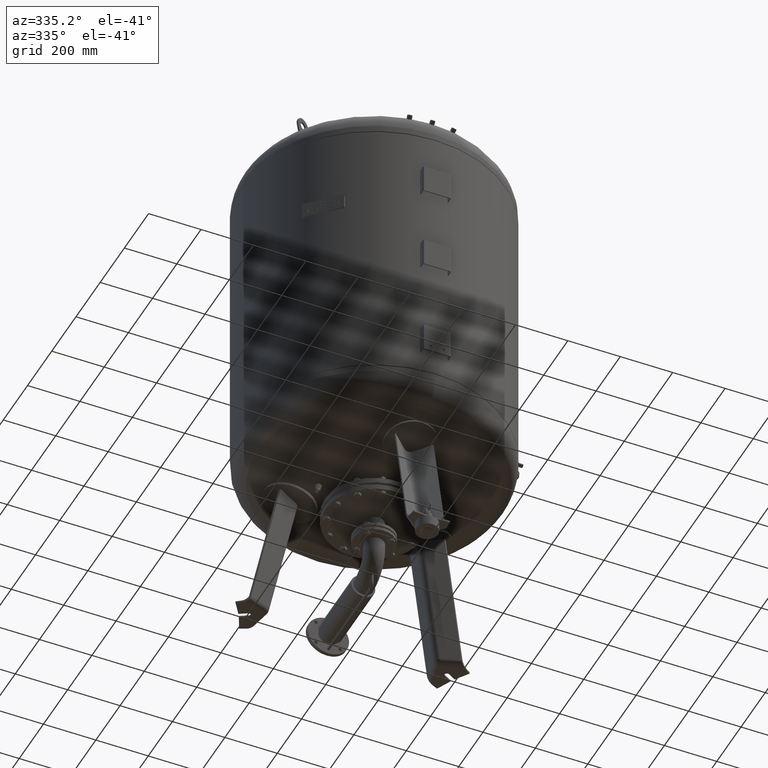
[diagram: clean part render]
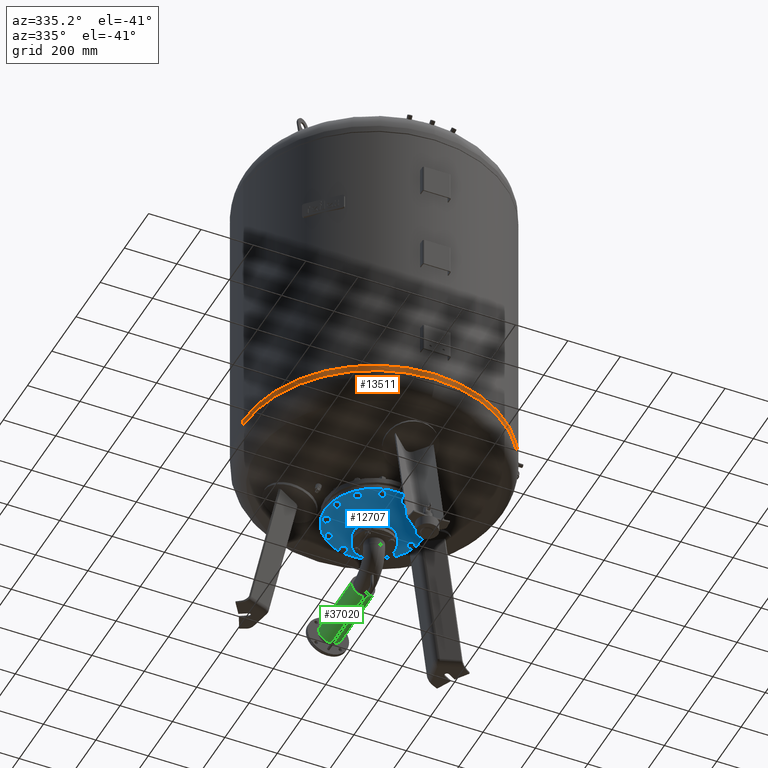
[diagram: same view with three faces highlighted in distinct colors, each labeled with its STEP entity id]
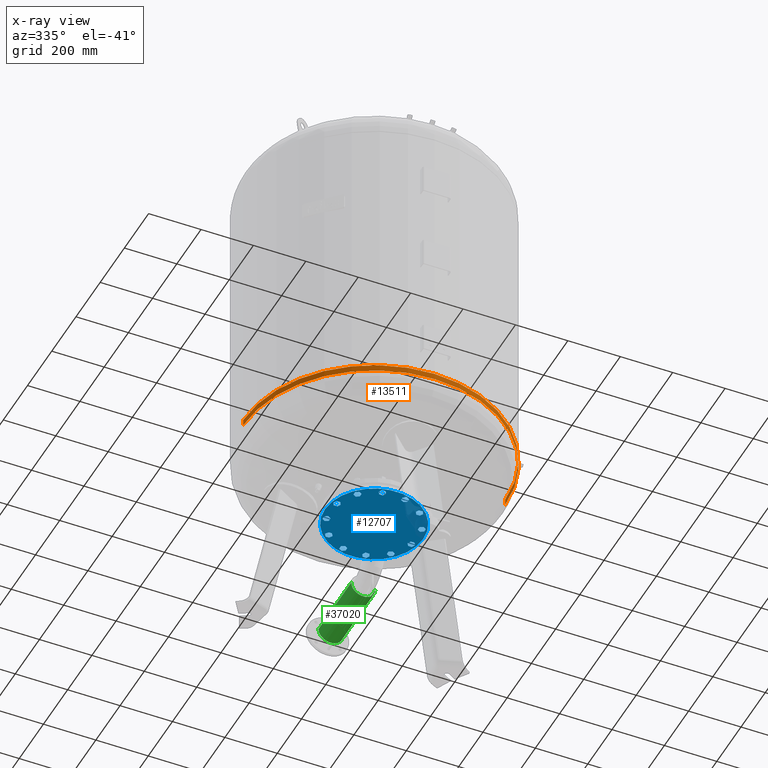
[diagram: x-ray of the same camera — body ghosted, the three highlighted faces saturated]
A machine part, auxiliary view with three faces highlighted in distinct colors.
The next image is the same camera in x-ray (body ghosted, the three faces saturated) — at least one of them is partly hidden behind the body in this view.
Their STEP definitions:

[orange] entity #13511 — the highlighted cylindrical surface (partial cylindrical patch) has radius 500 mm, axis along (-0, -0, 1).
#13319=CARTESIAN_POINT('',(-500.0,-3.995410E-014,677.500000000000000));
#13320=VERTEX_POINT('',#13319);
#13321=CARTESIAN_POINT('',(-500.0,-3.553717E-014,653.455355072719390));
#13322=VERTEX_POINT('',#13321);
#13323=CARTESIAN_POINT('',(-500.0,-3.995410E-014,677.500000000000000));
#13324=DIRECTION('',(0.0,0.0,-1.0));
#13325=VECTOR('',#13324,24.044644927280615);
#13326=LINE('',#13323,#13325);
#13327=EDGE_CURVE('',#13320,#13322,#13326,.T.);
#13329=CARTESIAN_POINT('',(500.0,2.127622E-014,677.500000000000110));
#13330=VERTEX_POINT('',#13329);
#13338=CARTESIAN_POINT('',(500.0,2.569315E-014,653.455355072719500));
#13339=VERTEX_POINT('',#13338);
#13340=CARTESIAN_POINT('',(500.0,2.127622E-014,677.500000000000110));
#13341=DIRECTION('',(0.0,0.0,-1.0));
#13342=VECTOR('',#13341,24.044644927280615);
#13343=LINE('',#13340,#13342);
#13344=EDGE_CURVE('',#13330,#13339,#13343,.T.);
#13370=CARTESIAN_POINT('',(3.381269E-030,-500.000000000000060,653.455355072719390));
#13371=VERTEX_POINT('',#13370);
#13381=CARTESIAN_POINT('',(-2.595210E-014,-3.553717E-014,653.455355072719500));
#13382=DIRECTION('',(0.0,0.0,1.0));
#13383=DIRECTION('',(-1.0,0.0,0.0));
#13384=AXIS2_PLACEMENT_3D('',#13381,#13382,#13383);
#13385=CIRCLE('',#13384,500.0);
#13386=EDGE_CURVE('',#13322,#13371,#13385,.T.);
#13483=CARTESIAN_POINT('',(-2.595210E-014,-3.553717E-014,653.455355072719500));
#13484=DIRECTION('',(0.0,0.0,1.0));
#13485=DIRECTION('',(-1.0,0.0,0.0));
#13486=AXIS2_PLACEMENT_3D('',#13483,#13484,#13485);
#13487=CIRCLE('',#13486,500.0);
#13488=EDGE_CURVE('',#13371,#13339,#13487,.T.);
#13493=CARTESIAN_POINT('',(-2.756489E-014,-3.774564E-014,665.477677536359810));
#13494=DIRECTION('',(-1.341503E-016,-1.836970E-016,1.0));
#13495=DIRECTION('',(-1.0,0.0,0.0));
#13496=AXIS2_PLACEMENT_3D('',#13493,#13494,#13495);
#13497=CYLINDRICAL_SURFACE('',#13496,500.0);
#13498=ORIENTED_EDGE('',*,*,#13327,.T.);
#13499=ORIENTED_EDGE('',*,*,#13386,.T.);
#13500=ORIENTED_EDGE('',*,*,#13488,.T.);
#13501=ORIENTED_EDGE('',*,*,#13344,.F.);
#13502=CARTESIAN_POINT('',(-2.917769E-014,-3.995410E-014,677.500000000000000));
#13503=DIRECTION('',(0.0,0.0,1.0));
#13504=DIRECTION('',(-1.0,0.0,0.0));
#13505=AXIS2_PLACEMENT_3D('',#13502,#13503,#13504);
#13506=CIRCLE('',#13505,500.0);
#13507=EDGE_CURVE('',#13320,#13330,#13506,.T.);
#13508=ORIENTED_EDGE('',*,*,#13507,.F.);
#13509=EDGE_LOOP('',(#13498,#13499,#13500,#13501,#13508));
#13510=FACE_OUTER_BOUND('',#13509,.T.);
#13511=ADVANCED_FACE('',(#13510),#13497,.T.);

[blue] entity #12707 — the highlighted planar face has unit normal (0, 0, -1).
#4851=CARTESIAN_POINT('',(-38.050000000000018,-4.163799E-015,383.0));
#4852=VERTEX_POINT('',#4851);
#4868=CARTESIAN_POINT('',(38.049999999999983,-8.823426E-015,383.0));
#4869=VERTEX_POINT('',#4868);
#4876=CARTESIAN_POINT('',(-8.604691E-015,-4.163799E-015,383.0));
#4877=DIRECTION('',(0.0,0.0,-1.0));
#4878=DIRECTION('',(-1.0,0.0,0.0));
#4879=AXIS2_PLACEMENT_3D('',#4876,#4877,#4878);
#4880=CIRCLE('',#4879,38.050000000000004);
#4881=EDGE_CURVE('',#4869,#4852,#4880,.T.);
#4891=CARTESIAN_POINT('',(-187.500000000000000,-4.163799E-015,383.000000000000110));
#4892=VERTEX_POINT('',#4891);
#4901=CARTESIAN_POINT('',(187.500000000000000,-2.712517E-014,383.000000000000110));
#4902=VERTEX_POINT('',#4901);
#4903=CARTESIAN_POINT('',(-8.604691E-015,-4.163799E-015,383.000000000000110));
#4904=DIRECTION('',(0.0,0.0,-1.0));
#4905=DIRECTION('',(-1.0,0.0,0.0));
#4906=AXIS2_PLACEMENT_3D('',#4903,#4904,#4905);
#4907=CIRCLE('',#4906,187.500000000000000);
#4908=EDGE_CURVE('',#4902,#4892,#4907,.T.);
#6881=CARTESIAN_POINT('',(43.352190054672320,-175.648982363969960,383.0));
#6882=VERTEX_POINT('',#6881);
#6883=CARTESIAN_POINT('',(55.352190054672313,-168.720779133694460,383.0));
#6884=VERTEX_POINT('',#6883);
#6885=CARTESIAN_POINT('',(43.352190054672320,-175.648982363969960,383.0));
#6886=DIRECTION('',(0.866025403784439,0.500000000000000,0.0));
#6887=VECTOR('',#6886,13.856406460551009);
#6888=LINE('',#6885,#6887);
#6889=EDGE_CURVE('',#6882,#6884,#6888,.T.);
#6921=CARTESIAN_POINT('',(31.352190054672334,-168.720779133694460,383.0));
#6922=VERTEX_POINT('',#6921);
#6923=CARTESIAN_POINT('',(31.352190054672334,-168.720779133694460,383.0));
#6924=DIRECTION('',(0.866025403784439,-0.500000000000000,0.0));
#6925=VECTOR('',#6924,13.856406460551002);
#6926=LINE('',#6923,#6925);
#6927=EDGE_CURVE('',#6922,#6882,#6926,.T.);
#6952=CARTESIAN_POINT('',(31.352190054672349,-154.864372673143440,383.0));
#6953=VERTEX_POINT('',#6952);
#6954=CARTESIAN_POINT('',(31.352190054672349,-154.864372673143440,383.0));
#6955=DIRECTION('',(0.0,-1.0,0.0));
#6956=VECTOR('',#6955,13.856406460551028);
#6957=LINE('',#6954,#6956);
#6958=EDGE_CURVE('',#6953,#6922,#6957,.T.);
#6983=CARTESIAN_POINT('',(43.352190054672320,-147.936169442867940,383.0));
#6984=VERTEX_POINT('',#6983);
#6985=CARTESIAN_POINT('',(43.352190054672320,-147.936169442867940,383.0));
#6986=DIRECTION('',(-0.866025403784438,-0.500000000000000,0.0));
#6987=VECTOR('',#6986,13.856406460550989);
#6988=LINE('',#6985,#6987);
#6989=EDGE_CURVE('',#6984,#6953,#6988,.T.);
#7014=CARTESIAN_POINT('',(55.352190054672313,-154.864372673143440,383.0));
#7015=VERTEX_POINT('',#7014);
#7016=CARTESIAN_POINT('',(55.352190054672313,-168.720779133694460,383.0));
#7017=DIRECTION('',(0.0,1.0,0.0));
#7018=VECTOR('',#7017,13.856406460551028);
#7019=LINE('',#7016,#7018);
#7020=EDGE_CURVE('',#6884,#7015,#7019,.T.);
#7045=CARTESIAN_POINT('',(55.352190054672313,-154.864372673143440,383.0));
#7046=DIRECTION('',(-0.866025403784439,0.500000000000000,0.0));
#7047=VECTOR('',#7046,13.856406460551009);
#7048=LINE('',#7045,#7047);
#7049=EDGE_CURVE('',#7015,#6984,#7048,.T.);
#7355=CARTESIAN_POINT('',(125.368589079022360,-130.440385848746640,383.0));
#7356=VERTEX_POINT('',#7355);
#7357=CARTESIAN_POINT('',(132.296792309297840,-118.440385848746640,383.0));
#7358=VERTEX_POINT('',#7357);
#7359=CARTESIAN_POINT('',(125.368589079022360,-130.440385848746640,383.0));
#7360=DIRECTION('',(0.499999999999999,0.866025403784439,0.0));
#7361=VECTOR('',#7360,13.856406460551007);
#7362=LINE('',#7359,#7361);
#7363=EDGE_CURVE('',#7356,#7358,#7362,.T.);
#7395=CARTESIAN_POINT('',(111.512182618471340,-130.440385848746640,383.0));
#7396=VERTEX_POINT('',#7395);
#7397=CARTESIAN_POINT('',(111.512182618471340,-130.440385848746640,383.0));
#7398=DIRECTION('',(1.0,0.0,0.0));
#7399=VECTOR('',#7398,13.856406460551014);
#7400=LINE('',#7397,#7399);
#7401=EDGE_CURVE('',#7396,#7356,#7400,.T.);
#7426=CARTESIAN_POINT('',(104.583979388195840,-118.440385848746660,383.0));
#7427=VERTEX_POINT('',#7426);
#7428=CARTESIAN_POINT('',(104.583979388195840,-118.440385848746660,383.0));
#7429=DIRECTION('',(0.500000000000000,-0.866025403784439,0.0));
#7430=VECTOR('',#7429,13.856406460551002);
#7431=LINE('',#7428,#7430);
#7432=EDGE_CURVE('',#7427,#7396,#7431,.T.);
#7457=CARTESIAN_POINT('',(111.512182618471340,-106.440385848746640,383.0));
#7458=VERTEX_POINT('',#7457);
#7459=CARTESIAN_POINT('',(111.512182618471340,-106.440385848746640,383.0));
#7460=DIRECTION('',(-0.499999999999999,-0.866025403784439,0.0));
#7461=VECTOR('',#7460,13.856406460551026);
#7462=LINE('',#7459,#7461);
#7463=EDGE_CURVE('',#7458,#7427,#7462,.T.);
#7488=CARTESIAN_POINT('',(125.368589079022340,-106.440385848746640,383.0));
#7489=VERTEX_POINT('',#7488);
#7490=CARTESIAN_POINT('',(132.296792309297840,-118.440385848746640,383.0));
#7491=DIRECTION('',(-0.500000000000000,0.866025403784439,0.0));
#7492=VECTOR('',#7491,13.856406460551014);
#7493=LINE('',#7490,#7492);
#7494=EDGE_CURVE('',#7358,#7489,#7493,.T.);
#7519=CARTESIAN_POINT('',(125.368589079022340,-106.440385848746640,383.0));
#7520=DIRECTION('',(-1.0,0.0,0.0));
#7521=VECTOR('',#7520,13.856406460551000);
#7522=LINE('',#7519,#7521);
#7523=EDGE_CURVE('',#7489,#7458,#7522,.T.);
#7829=CARTESIAN_POINT('',(173.792575903418990,-50.280393284947714,383.0));
#7830=VERTEX_POINT('',#7829);
#7831=CARTESIAN_POINT('',(173.792575903418990,-36.423986824396700,383.0));
#7832=VERTEX_POINT('',#7831);
#7833=CARTESIAN_POINT('',(173.792575903418990,-50.280393284947714,383.0));
#7834=DIRECTION('',(0.0,1.0,0.0));
#7835=VECTOR('',#7834,13.856406460551014);
#7836=LINE('',#7833,#7835);
#7837=EDGE_CURVE('',#7830,#7832,#7836,.T.);
#7869=CARTESIAN_POINT('',(161.792575903418990,-57.208596515223185,383.0));
#7870=VERTEX_POINT('',#7869);
#7871=CARTESIAN_POINT('',(161.792575903418990,-57.208596515223185,383.0));
#7872=DIRECTION('',(0.866025403784440,0.499999999999998,0.0));
#7873=VECTOR('',#7872,13.856406460551000);
#7874=LINE('',#7871,#7873);
#7875=EDGE_CURVE('',#7870,#7830,#7874,.T.);
#7900=CARTESIAN_POINT('',(149.792575903418990,-50.280393284947706,383.0));
#7901=VERTEX_POINT('',#7900);
#7902=CARTESIAN_POINT('',(149.792575903418990,-50.280393284947706,383.0));
#7903=DIRECTION('',(0.866025403784440,-0.499999999999998,0.0));
#7904=VECTOR('',#7903,13.856406460551003);
#7905=LINE('',#7902,#7904);
#7906=EDGE_CURVE('',#7901,#7870,#7905,.T.);
#7931=CARTESIAN_POINT('',(149.792575903419020,-36.423986824396692,383.0));
#7932=VERTEX_POINT('',#7931);
#7933=CARTESIAN_POINT('',(149.792575903419020,-36.423986824396692,383.0));
#7934=DIRECTION('',(0.0,-1.0,0.0));
#7935=VECTOR('',#7934,13.856406460551014);
#7936=LINE('',#7933,#7935);
#7937=EDGE_CURVE('',#7932,#7901,#7936,.T.);
#7962=CARTESIAN_POINT('',(161.792575903418990,-29.495783594121182,383.0));
#7963=VERTEX_POINT('',#7962);
#7964=CARTESIAN_POINT('',(173.792575903418990,-36.423986824396700,383.0));
#7965=DIRECTION('',(-0.866025403784438,0.500000000000000,0.0));
#7966=VECTOR('',#7965,13.856406460551023);
#7967=LINE('',#7964,#7966);
#7968=EDGE_CURVE('',#7832,#7963,#7967,.T.);
#7993=CARTESIAN_POINT('',(161.792575903418990,-29.495783594121182,383.0));
#7994=DIRECTION('',(-0.866025403784438,-0.500000000000001,0.0));
#7995=VECTOR('',#7994,13.856406460550994);
#7996=LINE('',#7993,#7995);
#7997=EDGE_CURVE('',#7963,#7932,#7996,.T.);
#8303=CARTESIAN_POINT('',(175.648982363969960,43.352190054672327,383.0));
#8304=VERTEX_POINT('',#8303);
#8305=CARTESIAN_POINT('',(168.720779133694460,55.352190054672320,383.0));
#8306=VERTEX_POINT('',#8305);
#8307=CARTESIAN_POINT('',(175.648982363969960,43.352190054672327,383.0));
#8308=DIRECTION('',(-0.500000000000000,0.866025403784439,0.0));
#8309=VECTOR('',#8308,13.856406460551009);
#8310=LINE('',#8307,#8309);
#8311=EDGE_CURVE('',#8304,#8306,#8310,.T.);
#8343=CARTESIAN_POINT('',(168.720779133694460,31.352190054672338,383.0));
#8344=VERTEX_POINT('',#8343);
#8345=CARTESIAN_POINT('',(168.720779133694460,31.352190054672338,383.0));
#8346=DIRECTION('',(0.500000000000000,0.866025403784439,0.0));
#8347=VECTOR('',#8346,13.856406460551003);
#8348=LINE('',#8345,#8347);
#8349=EDGE_CURVE('',#8344,#8304,#8348,.T.);
#8374=CARTESIAN_POINT('',(154.864372673143440,31.352190054672352,383.0));
#8375=VERTEX_POINT('',#8374);
#8376=CARTESIAN_POINT('',(154.864372673143440,31.352190054672352,383.0));
#8377=DIRECTION('',(1.0,0.0,0.0));
#8378=VECTOR('',#8377,13.856406460551028);
#8379=LINE('',#8376,#8378);
#8380=EDGE_CURVE('',#8375,#8344,#8379,.T.);
#8405=CARTESIAN_POINT('',(147.936169442867940,43.352190054672327,383.0));
#8406=VERTEX_POINT('',#8405);
#8407=CARTESIAN_POINT('',(147.936169442867940,43.352190054672327,383.0));
#8408=DIRECTION('',(0.500000000000000,-0.866025403784439,0.0));
#8409=VECTOR('',#8408,13.856406460550991);
#8410=LINE('',#8407,#8409);
#8411=EDGE_CURVE('',#8406,#8375,#8410,.T.);
#8436=CARTESIAN_POINT('',(154.864372673143440,55.352190054672320,383.0));
#8437=VERTEX_POINT('',#8436);
#8438=CARTESIAN_POINT('',(168.720779133694460,55.352190054672320,383.0));
#8439=DIRECTION('',(-1.0,0.0,0.0));
#8440=VECTOR('',#8439,13.856406460551028);
#8441=LINE('',#8438,#8440);
#8442=EDGE_CURVE('',#8306,#8437,#8441,.T.);
#8467=CARTESIAN_POINT('',(154.864372673143440,55.352190054672320,383.0));
#8468=DIRECTION('',(-0.500000000000000,-0.866025403784439,0.0));
#8469=VECTOR('',#8468,13.856406460551009);
#8470=LINE('',#8467,#8469);
#8471=EDGE_CURVE('',#8437,#8406,#8470,.T.);
#8777=CARTESIAN_POINT('',(130.440385848746670,125.368589079022270,383.0));
#8778=VERTEX_POINT('',#8777);
#8779=CARTESIAN_POINT('',(118.440385848746690,132.296792309297790,383.0));
#8780=VERTEX_POINT('',#8779);
#8781=CARTESIAN_POINT('',(130.440385848746670,125.368589079022270,383.0));
#8782=DIRECTION('',(-0.866025403784438,0.500000000000001,0.0));
#8783=VECTOR('',#8782,13.856406460551009);
#8784=LINE('',#8781,#8783);
#8785=EDGE_CURVE('',#8778,#8780,#8784,.T.);
#8817=CARTESIAN_POINT('',(130.440385848746670,111.512182618471270,383.0));
#8818=VERTEX_POINT('',#8817);
#8819=CARTESIAN_POINT('',(130.440385848746670,111.512182618471270,383.0));
#8820=DIRECTION('',(0.0,1.0,0.0));
#8821=VECTOR('',#8820,13.856406460551000);
#8822=LINE('',#8819,#8821);
#8823=EDGE_CURVE('',#8818,#8778,#8822,.T.);
#8848=CARTESIAN_POINT('',(118.440385848746700,104.583979388195790,383.0));
#8849=VERTEX_POINT('',#8848);
#8850=CARTESIAN_POINT('',(118.440385848746700,104.583979388195790,383.0));
#8851=DIRECTION('',(0.866025403784439,0.500000000000000,0.0));
#8852=VECTOR('',#8851,13.856406460550982);
#8853=LINE('',#8850,#8852);
#8854=EDGE_CURVE('',#8849,#8818,#8853,.T.);
#8879=CARTESIAN_POINT('',(106.440385848746700,111.512182618471290,383.0));
#8880=VERTEX_POINT('',#8879);
#8881=CARTESIAN_POINT('',(106.440385848746700,111.512182618471290,383.0));
#8882=DIRECTION('',(0.866025403784439,-0.500000000000000,0.0));
#8883=VECTOR('',#8882,13.856406460551014);
#8884=LINE('',#8881,#8883);
#8885=EDGE_CURVE('',#8880,#8849,#8884,.T.);
#8910=CARTESIAN_POINT('',(106.440385848746700,125.368589079022270,383.0));
#8911=VERTEX_POINT('',#8910);
#8912=CARTESIAN_POINT('',(118.440385848746690,132.296792309297790,383.0));
#8913=DIRECTION('',(-0.866025403784438,-0.500000000000001,0.0));
#8914=VECTOR('',#8913,13.856406460551009);
#8915=LINE('',#8912,#8914);
#8916=EDGE_CURVE('',#8780,#8911,#8915,.T.);
#8941=CARTESIAN_POINT('',(106.440385848746700,125.368589079022270,383.0));
#8942=DIRECTION('',(0.0,-1.0,0.0));
#8943=VECTOR('',#8942,13.856406460550986);
#8944=LINE('',#8941,#8943);
#8945=EDGE_CURVE('',#8911,#8880,#8944,.T.);
#9251=CARTESIAN_POINT('',(50.280393284947706,173.792575903418990,383.0));
#9252=VERTEX_POINT('',#9251);
#9253=CARTESIAN_POINT('',(36.423986824396678,173.792575903418940,383.0));
#9254=VERTEX_POINT('',#9253);
#9255=CARTESIAN_POINT('',(50.280393284947706,173.792575903418990,383.0));
#9256=DIRECTION('',(-1.0,0.0,0.0));
#9257=VECTOR('',#9256,13.856406460551028);
#9258=LINE('',#9255,#9257);
#9259=EDGE_CURVE('',#9252,#9254,#9258,.T.);
#9291=CARTESIAN_POINT('',(57.208596515223178,161.792575903418990,383.0));
#9292=VERTEX_POINT('',#9291);
#9293=CARTESIAN_POINT('',(57.208596515223178,161.792575903418990,383.0));
#9294=DIRECTION('',(-0.499999999999998,0.866025403784440,0.0));
#9295=VECTOR('',#9294,13.856406460551000);
#9296=LINE('',#9293,#9295);
#9297=EDGE_CURVE('',#9292,#9252,#9296,.T.);
#9322=CARTESIAN_POINT('',(50.280393284947692,149.792575903418990,383.0));
#9323=VERTEX_POINT('',#9322);
#9324=CARTESIAN_POINT('',(50.280393284947692,149.792575903418990,383.0));
#9325=DIRECTION('',(0.499999999999999,0.866025403784439,0.0));
#9326=VECTOR('',#9325,13.856406460551007);
#9327=LINE('',#9324,#9326);
#9328=EDGE_CURVE('',#9323,#9292,#9327,.T.);
#9353=CARTESIAN_POINT('',(36.423986824396678,149.792575903418990,383.0));
#9354=VERTEX_POINT('',#9353);
#9355=CARTESIAN_POINT('',(36.423986824396678,149.792575903418990,383.0));
#9356=DIRECTION('',(1.0,0.0,0.0));
#9357=VECTOR('',#9356,13.856406460551014);
#9358=LINE('',#9355,#9357);
#9359=EDGE_CURVE('',#9354,#9323,#9358,.T.);
#9384=CARTESIAN_POINT('',(29.495783594121185,161.792575903418990,383.0));
#9385=VERTEX_POINT('',#9384);
#9386=CARTESIAN_POINT('',(36.423986824396678,173.792575903418940,383.0));
#9387=DIRECTION('',(-0.500000000000001,-0.866025403784438,0.0));
#9388=VECTOR('',#9387,13.856406460550961);
#9389=LINE('',#9386,#9388);
#9390=EDGE_CURVE('',#9254,#9385,#9389,.T.);
#9415=CARTESIAN_POINT('',(29.495783594121185,161.792575903418990,383.0));
#9416=DIRECTION('',(0.499999999999999,-0.866025403784439,0.0));
#9417=VECTOR('',#9416,13.856406460551010);
#9418=LINE('',#9415,#9417);
#9419=EDGE_CURVE('',#9385,#9354,#9418,.T.);
#9725=CARTESIAN_POINT('',(-43.352190054672327,175.648982363969990,383.0));
#9726=VERTEX_POINT('',#9725);
#9727=CARTESIAN_POINT('',(-55.352190054672306,168.720779133694460,383.0));
#9728=VERTEX_POINT('',#9727);
#9729=CARTESIAN_POINT('',(-43.352190054672327,175.648982363969990,383.0));
#9730=DIRECTION('',(-0.866025403784438,-0.500000000000002,0.0));
#9731=VECTOR('',#9730,13.856406460551009);
#9732=LINE('',#9729,#9731);
#9733=EDGE_CURVE('',#9726,#9728,#9732,.T.);
#9765=CARTESIAN_POINT('',(-31.352190054672313,168.720779133694490,383.0));
#9766=VERTEX_POINT('',#9765);
#9767=CARTESIAN_POINT('',(-31.352190054672313,168.720779133694490,383.0));
#9768=DIRECTION('',(-0.866025403784439,0.499999999999999,0.0));
#9769=VECTOR('',#9768,13.856406460551026);
#9770=LINE('',#9767,#9769);
#9771=EDGE_CURVE('',#9766,#9726,#9770,.T.);
#9796=CARTESIAN_POINT('',(-31.352190054672327,154.864372673143460,383.0));
#9797=VERTEX_POINT('',#9796);
#9798=CARTESIAN_POINT('',(-31.352190054672327,154.864372673143460,383.0));
#9799=DIRECTION('',(0.0,1.0,0.0));
#9800=VECTOR('',#9799,13.856406460551028);
#9801=LINE('',#9798,#9800);
#9802=EDGE_CURVE('',#9797,#9766,#9801,.T.);
#9827=CARTESIAN_POINT('',(-43.352190054672334,147.936169442867940,383.0));
#9828=VERTEX_POINT('',#9827);
#9829=CARTESIAN_POINT('',(-43.352190054672334,147.936169442867940,383.0));
#9830=DIRECTION('',(0.866025403784438,0.500000000000001,0.0));
#9831=VECTOR('',#9830,13.856406460551034);
#9832=LINE('',#9829,#9831);
#9833=EDGE_CURVE('',#9828,#9797,#9832,.T.);
#9858=CARTESIAN_POINT('',(-55.352190054672306,154.864372673143460,383.0));
#9859=VERTEX_POINT('',#9858);
#9860=CARTESIAN_POINT('',(-55.352190054672306,168.720779133694460,383.0));
#9861=DIRECTION('',(0.0,-1.0,0.0));
#9862=VECTOR('',#9861,13.856406460551000);
#9863=LINE('',#9860,#9862);
#9864=EDGE_CURVE('',#9728,#9859,#9863,.T.);
#9889=CARTESIAN_POINT('',(-55.352190054672306,154.864372673143460,383.0));
#9890=DIRECTION('',(0.866025403784437,-0.500000000000002,0.0));
#9891=VECTOR('',#9890,13.856406460551003);
#9892=LINE('',#9889,#9891);
#9893=EDGE_CURVE('',#9859,#9828,#9892,.T.);
#10199=CARTESIAN_POINT('',(-125.368589079022270,130.440385848746700,383.0));
#10200=VERTEX_POINT('',#10199);
#10201=CARTESIAN_POINT('',(-132.296792309297790,118.440385848746690,383.0));
#10202=VERTEX_POINT('',#10201);
#10203=CARTESIAN_POINT('',(-125.368589079022270,130.440385848746700,383.0));
#10204=DIRECTION('',(-0.500000000000000,-0.866025403784439,0.0));
#10205=VECTOR('',#10204,13.856406460551034);
#10206=LINE('',#10203,#10205);
#10207=EDGE_CURVE('',#10200,#10202,#10206,.T.);
#10239=CARTESIAN_POINT('',(-111.512182618471270,130.440385848746670,383.0));
#10240=VERTEX_POINT('',#10239);
#10241=CARTESIAN_POINT('',(-111.512182618471270,130.440385848746670,383.0));
#10242=DIRECTION('',(-1.0,0.0,0.0));
#10243=VECTOR('',#10242,13.856406460551000);
#10244=LINE('',#10241,#10243);
#10245=EDGE_CURVE('',#10240,#10200,#10244,.T.);
#10270=CARTESIAN_POINT('',(-104.583979388195760,118.440385848746690,383.0));
#10271=VERTEX_POINT('',#10270);
#10272=CARTESIAN_POINT('',(-104.583979388195760,118.440385848746690,383.0));
#10273=DIRECTION('',(-0.500000000000001,0.866025403784438,0.0));
#10274=VECTOR('',#10273,13.856406460551009);
#10275=LINE('',#10272,#10274);
#10276=EDGE_CURVE('',#10271,#10240,#10275,.T.);
#10301=CARTESIAN_POINT('',(-111.512182618471270,106.440385848746700,383.0));
#10302=VERTEX_POINT('',#10301);
#10303=CARTESIAN_POINT('',(-111.512182618471270,106.440385848746700,383.0));
#10304=DIRECTION('',(0.500000000000001,0.866025403784438,0.0));
#10305=VECTOR('',#10304,13.856406460551009);
#10306=LINE('',#10303,#10305);
#10307=EDGE_CURVE('',#10302,#10271,#10306,.T.);
#10332=CARTESIAN_POINT('',(-125.368589079022270,106.440385848746700,383.0));
#10333=VERTEX_POINT('',#10332);
#10334=CARTESIAN_POINT('',(-132.296792309297790,118.440385848746690,383.0));
#10335=DIRECTION('',(0.500000000000001,-0.866025403784438,0.0));
#10336=VECTOR('',#10335,13.856406460551009);
#10337=LINE('',#10334,#10336);
#10338=EDGE_CURVE('',#10202,#10333,#10337,.T.);
#10363=CARTESIAN_POINT('',(-125.368589079022270,106.440385848746700,383.0));
#10364=DIRECTION('',(1.0,0.0,0.0));
#10365=VECTOR('',#10364,13.856406460551000);
#10366=LINE('',#10363,#10365);
#10367=EDGE_CURVE('',#10333,#10302,#10366,.T.);
#10673=CARTESIAN_POINT('',(-173.792575903418960,50.280393284947714,383.0));
#10674=VERTEX_POINT('',#10673);
#10675=CARTESIAN_POINT('',(-173.792575903418960,36.423986824396714,383.0));
#10676=VERTEX_POINT('',#10675);
#10677=CARTESIAN_POINT('',(-173.792575903418960,50.280393284947714,383.0));
#10678=DIRECTION('',(0.0,-1.0,0.0));
#10679=VECTOR('',#10678,13.856406460551000);
#10680=LINE('',#10677,#10679);
#10681=EDGE_CURVE('',#10674,#10676,#10680,.T.);
#10713=CARTESIAN_POINT('',(-161.792575903419020,57.208596515223206,383.0));
#10714=VERTEX_POINT('',#10713);
#10715=CARTESIAN_POINT('',(-161.792575903419020,57.208596515223206,383.0));
#10716=DIRECTION('',(-0.866025403784438,-0.500000000000001,0.0));
#10717=VECTOR('',#10716,13.856406460550961);
#10718=LINE('',#10715,#10717);
#10719=EDGE_CURVE('',#10714,#10674,#10718,.T.);
#10744=CARTESIAN_POINT('',(-149.792575903418990,50.280393284947714,383.0));
#10745=VERTEX_POINT('',#10744);
#10746=CARTESIAN_POINT('',(-149.792575903418990,50.280393284947714,383.0));
#10747=DIRECTION('',(-0.866025403784440,0.499999999999998,0.0));
#10748=VECTOR('',#10747,13.856406460551035);
#10749=LINE('',#10746,#10748);
#10750=EDGE_CURVE('',#10745,#10714,#10749,.T.);
#10775=CARTESIAN_POINT('',(-149.792575903418990,36.423986824396685,383.0));
#10776=VERTEX_POINT('',#10775);
#10777=CARTESIAN_POINT('',(-149.792575903418990,36.423986824396685,383.0));
#10778=DIRECTION('',(0.0,1.0,0.0));
#10779=VECTOR('',#10778,13.856406460551028);
#10780=LINE('',#10777,#10779);
#10781=EDGE_CURVE('',#10776,#10745,#10780,.T.);
#10806=CARTESIAN_POINT('',(-161.792575903418990,29.495783594121210,383.0));
#10807=VERTEX_POINT('',#10806);
#10808=CARTESIAN_POINT('',(-173.792575903418960,36.423986824396714,383.0));
#10809=DIRECTION('',(0.866025403784438,-0.500000000000001,0.0));
#10810=VECTOR('',#10809,13.856406460550991);
#10811=LINE('',#10808,#10810);
#10812=EDGE_CURVE('',#10676,#10807,#10811,.T.);
#10837=CARTESIAN_POINT('',(-161.792575903418990,29.495783594121210,383.0));
#10838=DIRECTION('',(0.866025403784440,0.499999999999998,0.0));
#10839=VECTOR('',#10838,13.856406460551002);
#10840=LINE('',#10837,#10839);
#10841=EDGE_CURVE('',#10807,#10776,#10840,.T.);
#11147=CARTESIAN_POINT('',(-175.648982363969990,-43.352190054672270,383.0));
#11148=VERTEX_POINT('',#11147);
#11149=CARTESIAN_POINT('',(-168.720779133694490,-55.352190054672263,383.0));
#11150=VERTEX_POINT('',#11149);
#11151=CARTESIAN_POINT('',(-175.648982363969990,-43.352190054672270,383.0));
#11152=DIRECTION('',(0.500000000000000,-0.866025403784439,0.0));
#11153=VECTOR('',#11152,13.856406460551009);
#11154=LINE('',#11151,#11153);
#11155=EDGE_CURVE('',#11148,#11150,#11154,.T.);
#11187=CARTESIAN_POINT('',(-168.720779133694490,-31.352190054672281,383.0));
#11188=VERTEX_POINT('',#11187);
#11189=CARTESIAN_POINT('',(-168.720779133694490,-31.352190054672281,383.0));
#11190=DIRECTION('',(-0.500000000000000,-0.866025403784439,0.0));
#11191=VECTOR('',#11190,13.856406460551003);
#11192=LINE('',#11189,#11191);
#11193=EDGE_CURVE('',#11188,#11148,#11192,.T.);
#11218=CARTESIAN_POINT('',(-154.864372673143460,-31.352190054672299,383.0));
#11219=VERTEX_POINT('',#11218);
#11220=CARTESIAN_POINT('',(-154.864372673143460,-31.352190054672299,383.0));
#11221=DIRECTION('',(-1.0,0.0,0.0));
#11222=VECTOR('',#11221,13.856406460551028);
#11223=LINE('',#11220,#11222);
#11224=EDGE_CURVE('',#11219,#11188,#11223,.T.);
#11249=CARTESIAN_POINT('',(-147.936169442867960,-43.352190054672299,383.0));
#11250=VERTEX_POINT('',#11249);
#11251=CARTESIAN_POINT('',(-147.936169442867960,-43.352190054672299,383.0));
#11252=DIRECTION('',(-0.500000000000000,0.866025403784439,0.0));
#11253=VECTOR('',#11252,13.856406460551014);
#11254=LINE('',#11251,#11253);
#11255=EDGE_CURVE('',#11250,#11219,#11254,.T.);
#11280=CARTESIAN_POINT('',(-154.864372673143460,-55.352190054672263,383.0));
#11281=VERTEX_POINT('',#11280);
#11282=CARTESIAN_POINT('',(-168.720779133694490,-55.352190054672263,383.0));
#11283=DIRECTION('',(1.0,0.0,0.0));
#11284=VECTOR('',#11283,13.856406460551028);
#11285=LINE('',#11282,#11284);
#11286=EDGE_CURVE('',#11150,#11281,#11285,.T.);
#11311=CARTESIAN_POINT('',(-154.864372673143460,-55.352190054672263,383.0));
#11312=DIRECTION('',(0.500000000000001,0.866025403784438,0.0));
#11313=VECTOR('',#11312,13.856406460550984);
#11314=LINE('',#11311,#11313);
#11315=EDGE_CURVE('',#11281,#11250,#11314,.T.);
#11621=CARTESIAN_POINT('',(-130.440385848746730,-125.368589079022260,383.0));
#11622=VERTEX_POINT('',#11621);
#11623=CARTESIAN_POINT('',(-118.440385848746730,-132.296792309297760,383.0));
#11624=VERTEX_POINT('',#11623);
#11625=CARTESIAN_POINT('',(-130.440385848746730,-125.368589079022260,383.0));
#11626=DIRECTION('',(0.866025403784439,-0.500000000000000,0.0));
#11627=VECTOR('',#11626,13.856406460551014);
#11628=LINE('',#11625,#11627);
#11629=EDGE_CURVE('',#11622,#11624,#11628,.T.);
#11661=CARTESIAN_POINT('',(-130.440385848746700,-111.512182618471260,383.0));
#11662=VERTEX_POINT('',#11661);
#11663=CARTESIAN_POINT('',(-130.440385848746700,-111.512182618471260,383.0));
#11664=DIRECTION('',(0.0,-1.0,0.0));
#11665=VECTOR('',#11664,13.856406460551000);
#11666=LINE('',#11663,#11665);
#11667=EDGE_CURVE('',#11662,#11622,#11666,.T.);
#11692=CARTESIAN_POINT('',(-118.440385848746700,-104.583979388195760,383.0));
#11693=VERTEX_POINT('',#11692);
#11694=CARTESIAN_POINT('',(-118.440385848746700,-104.583979388195760,383.0));
#11695=DIRECTION('',(-0.866025403784439,-0.500000000000000,0.0));
#11696=VECTOR('',#11695,13.856406460551014);
#11697=LINE('',#11694,#11696);
#11698=EDGE_CURVE('',#11693,#11662,#11697,.T.);
#11723=CARTESIAN_POINT('',(-106.440385848746710,-111.512182618471270,383.0));
#11724=VERTEX_POINT('',#11723);
#11725=CARTESIAN_POINT('',(-106.440385848746710,-111.512182618471270,383.0));
#11726=DIRECTION('',(-0.866025403784438,0.500000000000001,0.0));
#11727=VECTOR('',#11726,13.856406460551009);
#11728=LINE('',#11725,#11727);
#11729=EDGE_CURVE('',#11724,#11693,#11728,.T.);
#11754=CARTESIAN_POINT('',(-106.440385848746710,-125.368589079022260,383.0));
#11755=VERTEX_POINT('',#11754);
#11756=CARTESIAN_POINT('',(-118.440385848746730,-132.296792309297760,383.0));
#11757=DIRECTION('',(0.866025403784439,0.499999999999999,0.0));
#11758=VECTOR('',#11757,13.856406460551026);
#11759=LINE('',#11756,#11758);
#11760=EDGE_CURVE('',#11624,#11755,#11759,.T.);
#11785=CARTESIAN_POINT('',(-106.440385848746710,-125.368589079022260,383.0));
#11786=DIRECTION('',(0.0,1.0,0.0));
#11787=VECTOR('',#11786,13.856406460550986);
#11788=LINE('',#11785,#11787);
#11789=EDGE_CURVE('',#11755,#11724,#11788,.T.);
#12391=CARTESIAN_POINT('',(-50.280393284947756,-173.792575903418960,383.0));
#12392=VERTEX_POINT('',#12391);
#12393=CARTESIAN_POINT('',(-36.423986824396742,-173.792575903418960,383.0));
#12394=VERTEX_POINT('',#12393);
#12395=CARTESIAN_POINT('',(-50.280393284947756,-173.792575903418960,383.0));
#12396=DIRECTION('',(1.0,0.0,0.0));
#12397=VECTOR('',#12396,13.856406460551014);
#12398=LINE('',#12395,#12397);
#12399=EDGE_CURVE('',#12392,#12394,#12398,.T.);
#12431=CARTESIAN_POINT('',(-57.208596515223249,-161.792575903418990,383.0));
#12432=VERTEX_POINT('',#12431);
#12433=CARTESIAN_POINT('',(-57.208596515223249,-161.792575903418990,383.0));
#12434=DIRECTION('',(0.500000000000000,-0.866025403784439,0.0));
#12435=VECTOR('',#12434,13.856406460550986);
#12436=LINE('',#12433,#12435);
#12437=EDGE_CURVE('',#12432,#12392,#12436,.T.);
#12462=CARTESIAN_POINT('',(-50.280393284947735,-149.792575903418990,383.0));
#12463=VERTEX_POINT('',#12462);
#12464=CARTESIAN_POINT('',(-50.280393284947735,-149.792575903418990,383.0));
#12465=DIRECTION('',(-0.500000000000000,-0.866025403784438,0.0));
#12466=VECTOR('',#12465,13.856406460551021);
#12467=LINE('',#12464,#12466);
#12468=EDGE_CURVE('',#12463,#12432,#12467,.T.);
#12493=CARTESIAN_POINT('',(-36.423986824396721,-149.792575903418990,383.0));
#12494=VERTEX_POINT('',#12493);
#12495=CARTESIAN_POINT('',(-36.423986824396721,-149.792575903418990,383.0));
#12496=DIRECTION('',(-1.0,0.0,0.0));
#12497=VECTOR('',#12496,13.856406460551014);
#12498=LINE('',#12495,#12497);
#12499=EDGE_CURVE('',#12494,#12463,#12498,.T.);
#12524=CARTESIAN_POINT('',(-29.495783594121228,-161.792575903418990,383.0));
#12525=VERTEX_POINT('',#12524);
#12526=CARTESIAN_POINT('',(-36.423986824396742,-173.792575903418960,383.0));
#12527=DIRECTION('',(0.500000000000001,0.866025403784438,0.0));
#12528=VECTOR('',#12527,13.856406460550996);
#12529=LINE('',#12526,#12528);
#12530=EDGE_CURVE('',#12394,#12525,#12529,.T.);
#12555=CARTESIAN_POINT('',(-29.495783594121228,-161.792575903418990,383.0));
#12556=DIRECTION('',(-0.499999999999999,0.866025403784439,0.0));
#12557=VECTOR('',#12556,13.856406460551010);
#12558=LINE('',#12555,#12557);
#12559=EDGE_CURVE('',#12525,#12494,#12558,.T.);
#12586=CARTESIAN_POINT('',(-19.025000000000009,-4.163799E-015,383.0));
#12587=DIRECTION('',(0.0,0.0,-1.0));
#12588=DIRECTION('',(0.0,-1.0,0.0));
#12589=AXIS2_PLACEMENT_3D('',#12586,#12587,#12588);
#12590=PLANE('',#12589);
#12591=CARTESIAN_POINT('',(-8.604691E-015,-4.163799E-015,383.000000000000110));
#12592=DIRECTION('',(0.0,0.0,-1.0));
#12593=DIRECTION('',(-1.0,0.0,0.0));
#12594=AXIS2_PLACEMENT_3D('',#12591,#12592,#12593);
#12595=CIRCLE('',#12594,187.500000000000000);
#12596=EDGE_CURVE('',#4892,#4902,#12595,.T.);
#12597=ORIENTED_EDGE('',*,*,#12596,.T.);
#12598=ORIENTED_EDGE('',*,*,#4908,.T.);
#12599=EDGE_LOOP('',(#12597,#12598));
#12600=FACE_OUTER_BOUND('',#12599,.T.);
#12601=ORIENTED_EDGE('',*,*,#6889,.T.);
#12602=ORIENTED_EDGE('',*,*,#7020,.T.);
#12603=ORIENTED_EDGE('',*,*,#7049,.T.);
#12604=ORIENTED_EDGE('',*,*,#6989,.T.);
#12605=ORIENTED_EDGE('',*,*,#6958,.T.);
#12606=ORIENTED_EDGE('',*,*,#6927,.T.);
#12607=EDGE_LOOP('',(#12601,#12602,#12603,#12604,#12605,#12606));
#12608=FACE_BOUND('',#12607,.T.);
#12609=ORIENTED_EDGE('',*,*,#7363,.T.);
#12610=ORIENTED_EDGE('',*,*,#7494,.T.);
#12611=ORIENTED_EDGE('',*,*,#7523,.T.);
#12612=ORIENTED_EDGE('',*,*,#7463,.T.);
#12613=ORIENTED_EDGE('',*,*,#7432,.T.);
#12614=ORIENTED_EDGE('',*,*,#7401,.T.);
#12615=EDGE_LOOP('',(#12609,#12610,#12611,#12612,#12613,#12614));
#12616=FACE_BOUND('',#12615,.T.);
#12617=ORIENTED_EDGE('',*,*,#7837,.T.);
#12618=ORIENTED_EDGE('',*,*,#7968,.T.);
#12619=ORIENTED_EDGE('',*,*,#7997,.T.);
#12620=ORIENTED_EDGE('',*,*,#7937,.T.);
#12621=ORIENTED_EDGE('',*,*,#7906,.T.);
#12622=ORIENTED_EDGE('',*,*,#7875,.T.);
#12623=EDGE_LOOP('',(#12617,#12618,#12619,#12620,#12621,#12622));
#12624=FACE_BOUND('',#12623,.T.);
#12625=ORIENTED_EDGE('',*,*,#8311,.T.);
#12626=ORIENTED_EDGE('',*,*,#8442,.T.);
#12627=ORIENTED_EDGE('',*,*,#8471,.T.);
#12628=ORIENTED_EDGE('',*,*,#8411,.T.);
#12629=ORIENTED_EDGE('',*,*,#8380,.T.);
#12630=ORIENTED_EDGE('',*,*,#8349,.T.);
#12631=EDGE_LOOP('',(#12625,#12626,#12627,#12628,#12629,#12630));
#12632=FACE_BOUND('',#12631,.T.);
#12633=ORIENTED_EDGE('',*,*,#8785,.T.);
#12634=ORIENTED_EDGE('',*,*,#8916,.T.);
#12635=ORIENTED_EDGE('',*,*,#8945,.T.);
#12636=ORIENTED_EDGE('',*,*,#8885,.T.);
#12637=ORIENTED_EDGE('',*,*,#8854,.T.);
#12638=ORIENTED_EDGE('',*,*,#8823,.T.);
#12639=EDGE_LOOP('',(#12633,#12634,#12635,#12636,#12637,#12638));
#12640=FACE_BOUND('',#12639,.T.);
#12641=ORIENTED_EDGE('',*,*,#9259,.T.);
#12642=ORIENTED_EDGE('',*,*,#9390,.T.);
#12643=ORIENTED_EDGE('',*,*,#9419,.T.);
#12644=ORIENTED_EDGE('',*,*,#9359,.T.);
#12645=ORIENTED_EDGE('',*,*,#9328,.T.);
#12646=ORIENTED_EDGE('',*,*,#9297,.T.);
#12647=EDGE_LOOP('',(#12641,#12642,#12643,#12644,#12645,#12646));
#12648=FACE_BOUND('',#12647,.T.);
#12649=ORIENTED_EDGE('',*,*,#9733,.T.);
#12650=ORIENTED_EDGE('',*,*,#9864,.T.);
#12651=ORIENTED_EDGE('',*,*,#9893,.T.);
#12652=ORIENTED_EDGE('',*,*,#9833,.T.);
#12653=ORIENTED_EDGE('',*,*,#9802,.T.);
#12654=ORIENTED_EDGE('',*,*,#9771,.T.);
#12655=EDGE_LOOP('',(#12649,#12650,#12651,#12652,#12653,#12654));
#12656=FACE_BOUND('',#12655,.T.);
#12657=ORIENTED_EDGE('',*,*,#10207,.T.);
#12658=ORIENTED_EDGE('',*,*,#10338,.T.);
#12659=ORIENTED_EDGE('',*,*,#10367,.T.);
#12660=ORIENTED_EDGE('',*,*,#10307,.T.);
#12661=ORIENTED_EDGE('',*,*,#10276,.T.);
#12662=ORIENTED_EDGE('',*,*,#10245,.T.);
#12663=EDGE_LOOP('',(#12657,#12658,#12659,#12660,#12661,#12662));
#12664=FACE_BOUND('',#12663,.T.);
#12665=ORIENTED_EDGE('',*,*,#10681,.T.);
#12666=ORIENTED_EDGE('',*,*,#10812,.T.);
#12667=ORIENTED_EDGE('',*,*,#10841,.T.);
#12668=ORIENTED_EDGE('',*,*,#10781,.T.);
#12669=ORIENTED_EDGE('',*,*,#10750,.T.);
#12670=ORIENTED_EDGE('',*,*,#10719,.T.);
#12671=EDGE_LOOP('',(#12665,#12666,#12667,#12668,#12669,#12670));
#12672=FACE_BOUND('',#12671,.T.);
#12673=ORIENTED_EDGE('',*,*,#11155,.T.);
#12674=ORIENTED_EDGE('',*,*,#11286,.T.);
#12675=ORIENTED_EDGE('',*,*,#11315,.T.);
#12676=ORIENTED_EDGE('',*,*,#11255,.T.);
#12677=ORIENTED_EDGE('',*,*,#11224,.T.);
#12678=ORIENTED_EDGE('',*,*,#11193,.T.);
#12679=EDGE_LOOP('',(#12673,#12674,#12675,#12676,#12677,#12678));
#12680=FACE_BOUND('',#12679,.T.);
#12681=ORIENTED_EDGE('',*,*,#11629,.T.);
#12682=ORIENTED_EDGE('',*,*,#11760,.T.);
#12683=ORIENTED_EDGE('',*,*,#11789,.T.);
#12684=ORIENTED_EDGE('',*,*,#11729,.T.);
#12685=ORIENTED_EDGE('',*,*,#11698,.T.);
#12686=ORIENTED_EDGE('',*,*,#11667,.T.);
#12687=EDGE_LOOP('',(#12681,#12682,#12683,#12684,#12685,#12686));
#12688=FACE_BOUND('',#12687,.T.);
#12689=ORIENTED_EDGE('',*,*,#12399,.T.);
#12690=ORIENTED_EDGE('',*,*,#12530,.T.);
#12691=ORIENTED_EDGE('',*,*,#12559,.T.);
#12692=ORIENTED_EDGE('',*,*,#12499,.T.);
#12693=ORIENTED_EDGE('',*,*,#12468,.T.);
#12694=ORIENTED_EDGE('',*,*,#12437,.T.);
#12695=EDGE_LOOP('',(#12689,#12690,#12691,#12692,#12693,#12694));
#12696=FACE_BOUND('',#12695,.T.);
#12697=CARTESIAN_POINT('',(-8.604691E-015,-4.163799E-015,383.0));
#12698=DIRECTION('',(0.0,0.0,-1.0));
#12699=DIRECTION('',(-1.0,0.0,0.0));
#12700=AXIS2_PLACEMENT_3D('',#12697,#12698,#12699);
#12701=CIRCLE('',#12700,38.050000000000004);
#12702=EDGE_CURVE('',#4852,#4869,#12701,.T.);
#12703=ORIENTED_EDGE('',*,*,#12702,.F.);
#12704=ORIENTED_EDGE('',*,*,#4881,.F.);
#12705=EDGE_LOOP('',(#12703,#12704));
#12706=FACE_BOUND('',#12705,.T.);
#12707=ADVANCED_FACE('',(#12600,#12608,#12616,#12624,#12632,#12640,#12648,#12656,#12664,#12672,#12680,#12688,#12696,#12706),#12590,.T.);

[green] entity #37020 — the highlighted cylindrical surface (edge-blend (fillet) strip) has radius 46.05 mm, axis along (0, 1, 0).
#36979=CARTESIAN_POINT('',(-1.359358E-014,90.0,168.0));
#36980=DIRECTION('',(0.0,1.0,0.0));
#36981=DIRECTION('',(-1.0,0.0,0.0));
#36982=AXIS2_PLACEMENT_3D('',#36979,#36980,#36981);
#36983=CYLINDRICAL_SURFACE('',#36982,46.049999999999997);
#36984=CARTESIAN_POINT('',(-46.050000000000011,360.0,168.0));
#36985=VERTEX_POINT('',#36984);
#36986=CARTESIAN_POINT('',(-46.050000000000011,90.0,168.0));
#36987=VERTEX_POINT('',#36986);
#36988=CARTESIAN_POINT('',(-46.050000000000011,360.0,168.0));
#36989=DIRECTION('',(0.0,-1.0,0.0));
#36990=VECTOR('',#36989,270.0);
#36991=LINE('',#36988,#36990);
#36992=EDGE_CURVE('',#36985,#36987,#36991,.T.);
#36993=ORIENTED_EDGE('',*,*,#36992,.F.);
#36994=CARTESIAN_POINT('',(46.049999999999983,360.0,168.0));
#36995=VERTEX_POINT('',#36994);
#36996=CARTESIAN_POINT('',(-1.359358E-014,360.0,168.0));
#36997=DIRECTION('',(0.0,-1.0,0.0));
#36998=DIRECTION('',(-1.0,0.0,0.0));
#36999=AXIS2_PLACEMENT_3D('',#36996,#36997,#36998);
#37000=CIRCLE('',#36999,46.049999999999997);
#37001=EDGE_CURVE('',#36985,#36995,#37000,.T.);
#37002=ORIENTED_EDGE('',*,*,#37001,.T.);
#37003=CARTESIAN_POINT('',(46.049999999999983,90.0,168.0));
#37004=VERTEX_POINT('',#37003);
#37005=CARTESIAN_POINT('',(46.049999999999983,360.0,168.0));
#37006=DIRECTION('',(0.0,-1.0,0.0));
#37007=VECTOR('',#37006,270.0);
#37008=LINE('',#37005,#37007);
#37009=EDGE_CURVE('',#36995,#37004,#37008,.T.);
#37010=ORIENTED_EDGE('',*,*,#37009,.T.);
#37011=CARTESIAN_POINT('',(-1.359358E-014,90.0,168.0));
#37012=DIRECTION('',(0.0,-1.0,0.0));
#37013=DIRECTION('',(-1.0,0.0,0.0));
#37014=AXIS2_PLACEMENT_3D('',#37011,#37012,#37013);
#37015=CIRCLE('',#37014,46.049999999999997);
#37016=EDGE_CURVE('',#36987,#37004,#37015,.T.);
#37017=ORIENTED_EDGE('',*,*,#37016,.F.);
#37018=EDGE_LOOP('',(#36993,#37002,#37010,#37017));
#37019=FACE_OUTER_BOUND('',#37018,.T.);
#37020=ADVANCED_FACE('',(#37019),#36983,.T.);